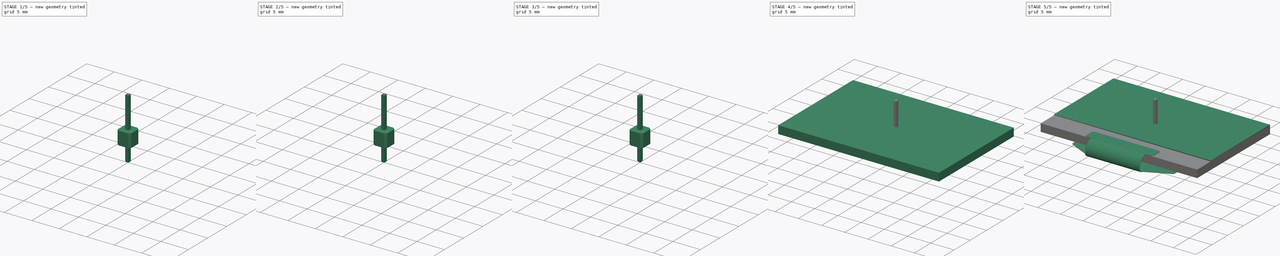
[diagram: build sequence overview — one tinted view per stage of 5, left to right]
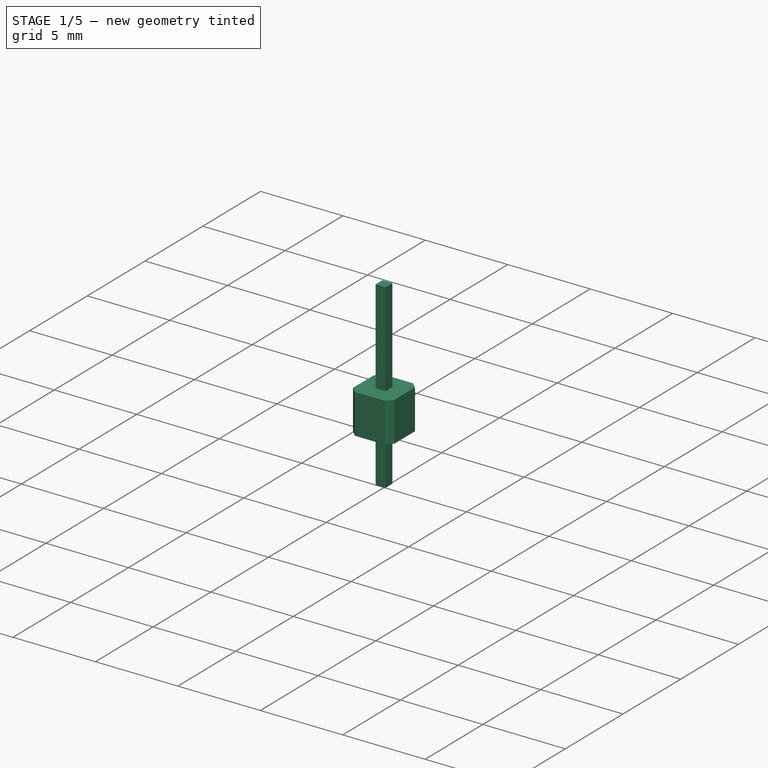
[diagram: stage 1 of 5 — iso view after this stage's code; geometry added in this stage tinted green]
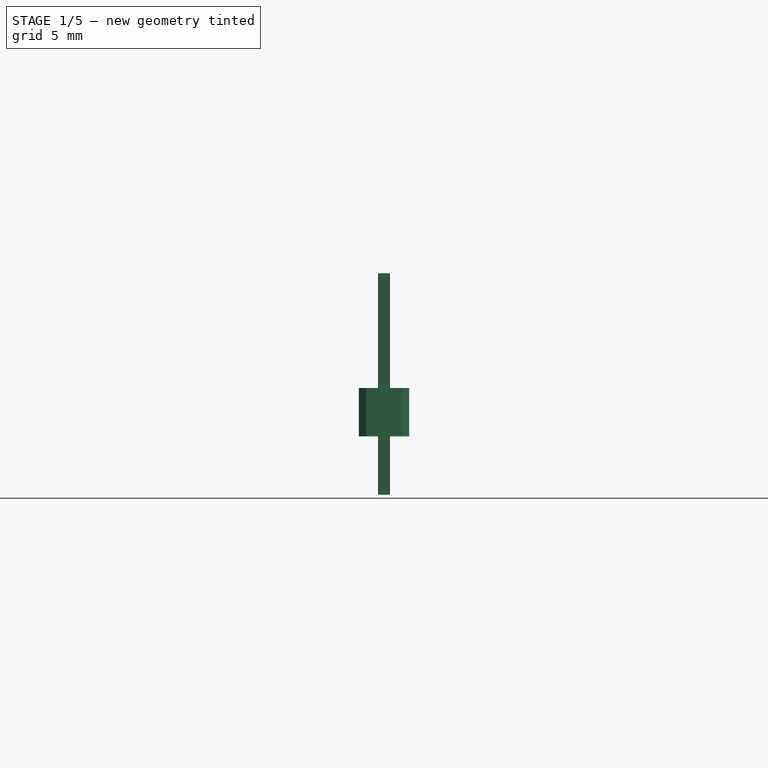
[diagram: stage 1 of 5 — front view after this stage's code; geometry added in this stage tinted green]
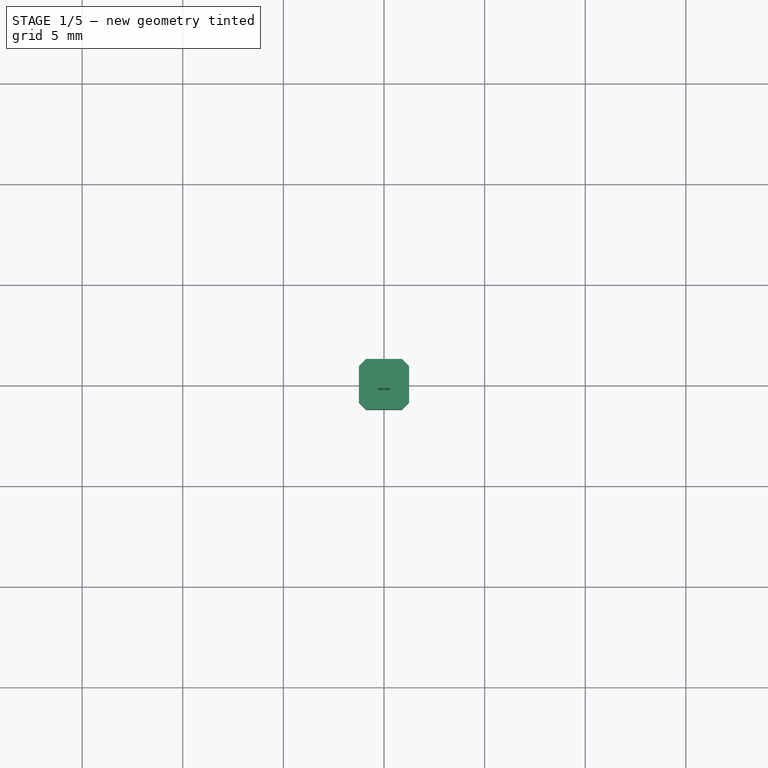
[diagram: stage 1 of 5 — top view after this stage's code; geometry added in this stage tinted green]
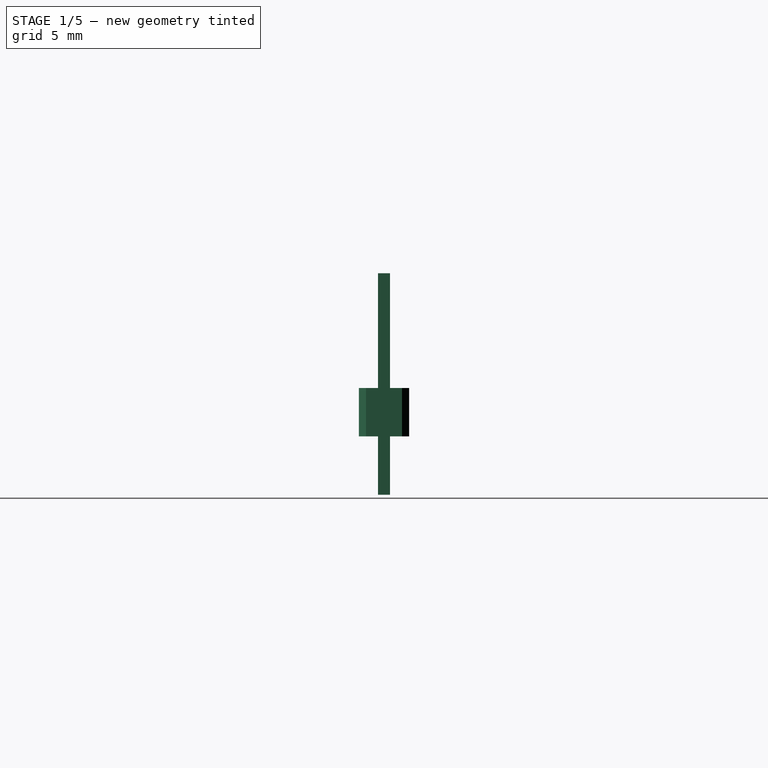
[diagram: stage 1 of 5 — right view after this stage's code; geometry added in this stage tinted green]
FCSTD DOCUMENT  (FreeCAD 0.22R37898 (Git))
Label: display
License: All rights reserved
LicenseURL: http://en.wikipedia.org/wiki/All_rights_reserved
objects: Sketcher::SketchObject×14, PartDesign::Pad×14, PartDesign::Body×11, App::Part×5, PartDesign::Chamfer×4
note: 61 computed .brp shape members not serialized (recipe doc carries the construction recipe); baked Part::Feature solids carry a one-line shape summary decoded from their .brp

FEATURE [PartDesign::Body] Body007  label="Pin base002"
  AllowCompound = false
  Group = -> [Sketch068,Pad010]
  Origin = -> Origin080
  Tip = -> Pad010
FEATURE [Sketcher::SketchObject] Sketch069
  AttachmentSupport = -> [XZ_Plane081]
  FullyConstrained = true
  MapMode = 5
  Placement = pos=(0,0,0) rot=(1,0,0;1.5708rad)
  sketch-geometry (4):
    g0: LineSegment StartX=-0.3 StartY=8.1 StartZ=0 EndX=-0.3 EndY=-2.9 EndZ=0
    g1: LineSegment StartX=-0.3 StartY=-2.9 StartZ=0 EndX=0.3 EndY=-2.9 EndZ=0
    g2: LineSegment StartX=0.3 StartY=-2.9 StartZ=0 EndX=0.3 EndY=8.1 EndZ=0
    g3: LineSegment StartX=0.3 StartY=8.1 StartZ=0 EndX=-0.3 EndY=8.1 EndZ=0
  constraints (11):
    c: Vertical(g0)
    c: Coincident(g0,g1)
    c: Vertical(g2)
    c: Coincident(g3,g0)
    c: Horizontal(g3)
    c: DistanceX(g0,g2) = 0.6  'thickness'
    c: DistanceY(g0,g0) = 11
    c: DistanceY(g-1,g0) = 8.1
    c: Coincident(g1,g2)
    c: Coincident(g2,g3)
    c: Symmetric(g1,g0,g-2)
FEATURE [PartDesign::Pad] Pad031  label="Pad011"
  Direction = (0,-1,2e-16)
  Length = 0.6
  Length2 = 10
  Midplane = true
  Placement = pos=(0,0,0) rot=(1,0,0;1.5708rad)
  Profile = -> Sketch069
  ReferenceAxis = -> Sketch069 [N_Axis]
  Suppressed = false
  Type = 0
  expr: Length = <<Sketch069>>.Constraints.thickness
FEATURE [PartDesign::Body] Body019  label="Pin002"
  AllowCompound = false
  Group = -> [Sketch069,Pad031,Chamfer004]
  Origin = -> Origin081
  Tip = -> Chamfer004
FEATURE [App::Part] Part010  label="Header pin002"
  Group = -> [Body019,Body007]
  Origin = -> Origin082
  Placement = pos=(-1.25,15.5,-2e-16) rot=(0,1,0;3.14159rad)
FEATURE [Sketcher::SketchObject] Sketch070
  AttachmentSupport = -> [XY_Plane083]
  FullyConstrained = true
  MapMode = 5
  sketch-geometry (16):
    g0: LineSegment StartX=-1.25 StartY=0.896447 StartZ=0 EndX=-1.25 EndY=-0.896447 EndZ=0
    g1: LineSegment StartX=-0.896447 StartY=-1.25 StartZ=0 EndX=0.896447 EndY=-1.25 EndZ=0
    g2: LineSegment StartX=1.25 StartY=-0.896447 StartZ=0 EndX=1.25 EndY=0.896447 EndZ=0
    g3: LineSegment StartX=0.896447 StartY=1.25 StartZ=0 EndX=-0.896447 EndY=1.25 EndZ=0
    g4: ArcOfCircle CenterX=0.896447 CenterY=0.896447 CenterZ=0 NormalX=0 NormalY=0 NormalZ=1 AngleXU=0 Radius=0.353553 StartAngle=5.86e-14 EndAngle=1.5708
    g5: GeomPoint X=1.25 Y=1.25 Z=0
    g6: LineSegment StartX=1.25 StartY=0.896447 StartZ=0 EndX=0.896447 EndY=1.25 EndZ=0
    g7: ArcOfCircle CenterX=-0.896447 CenterY=0.896447 CenterZ=0 NormalX=0 NormalY=0 NormalZ=1 AngleXU=0 Radius=0.353553 StartAngle=1.5708 EndAngle=3.14159
    g8: GeomPoint X=-1.25 Y=1.25 Z=0
    g9: LineSegment StartX=-0.896447 StartY=1.25 StartZ=0 EndX=-1.25 EndY=0.896447 EndZ=0
    g10: ArcOfCircle CenterX=-0.896447 CenterY=-0.896447 CenterZ=0 NormalX=0 NormalY=0 NormalZ=1 AngleXU=0 Radius=0.353553 StartAngle=3.14159 EndAngle=4.71239
    g11: GeomPoint X=-1.25 Y=-1.25 Z=0
    g12: LineSegment StartX=-1.25 StartY=-0.896447 StartZ=0 EndX=-0.896447 EndY=-1.25 EndZ=0
    g13: ArcOfCircle CenterX=0.896447 CenterY=-0.896447 CenterZ=0 NormalX=0 NormalY=0 NormalZ=1 AngleXU=0 Radius=0.353553 StartAngle=4.71239 EndAngle=6.28319
    g14: GeomPoint X=1.25 Y=-1.25 Z=0
    g15: LineSegment StartX=0.896447 StartY=-1.25 StartZ=0 EndX=1.25 EndY=-0.896447 EndZ=0
  constraints (35):
    c: Vertical(g0)
    c: Vertical(g2)
    c: Horizontal(g1)
    c: Horizontal(g3)
    c: Symmetric(g14,g8,g-1)
    c: PointOnObject(g5,g2)
    c: PointOnObject(g5,g3)
    c: Tangent(g2,g4) = -1.5708
    c: Tangent(g3,g4) = -1.5708
    c: Coincident(g6,g2)
    c: Coincident(g6,g3)
    c: PointOnObject(g8,g0)
    c: PointOnObject(g8,g3)
    c: Tangent(g0,g7) = -1.5708
    c: Tangent(g3,g7) = -1.5708
    c: Coincident(g9,g0)
    c: Coincident(g9,g3)
    c: PointOnObject(g11,g0)
    c: PointOnObject(g11,g1)
    c: Tangent(g0,g10) = -1.5708
    c: Tangent(g1,g10) = -1.5708
    c: Coincident(g12,g0)
    c: Coincident(g12,g1)
    c: PointOnObject(g14,g1)
    c: PointOnObject(g14,g2)
    c: Tangent(g1,g13) = -1.5708
    c: Tangent(g2,g13) = -1.5708
    c: Coincident(g15,g1)
    c: Coincident(g15,g2)
    c: Equal(g13,g4)
    c: Equal(g4,g7)
    c: Equal(g7,g10)
    c: DistanceY(g1,g3) = 2.5
    c: Equal(g2,g3)
    c: Distance(g6) = 0.5
FEATURE [PartDesign::Pad] Pad032  label="Pad012"
  Direction = (0,0,1)
  Length = 2.4
  Length2 = 10
  Profile = -> Sketch070
  ReferenceAxis = -> Sketch070 [N_Axis]
  Suppressed = false
  Type = 0
FEATURE [PartDesign::Body] Body020  label="Pin base003"
  AllowCompound = false
  Group = -> [Sketch070,Pad032]
  Origin = -> Origin083
  Tip = -> Pad032
FEATURE [Sketcher::SketchObject] Sketch071
  AttachmentSupport = -> [XZ_Plane084]
  FullyConstrained = true
  MapMode = 5
  Placement = pos=(0,0,0) rot=(1,0,0;1.5708rad)
  sketch-geometry (4):
    g0: LineSegment StartX=-0.3 StartY=8.1 StartZ=0 EndX=-0.3 EndY=-2.9 EndZ=0
    g1: LineSegment StartX=-0.3 StartY=-2.9 StartZ=0 EndX=0.3 EndY=-2.9 EndZ=0
    g2: LineSegment StartX=0.3 StartY=-2.9 StartZ=0 EndX=0.3 EndY=8.1 EndZ=0
    g3: LineSegment StartX=0.3 StartY=8.1 StartZ=0 EndX=-0.3 EndY=8.1 EndZ=0
  constraints (11):
    c: Vertical(g0)
    c: Coincident(g0,g1)
    c: Vertical(g2)
    c: Coincident(g3,g0)
    c: Horizontal(g3)
    c: DistanceX(g0,g2) = 0.6  'thickness'
    c: DistanceY(g0,g0) = 11
    c: DistanceY(g-1,g0) = 8.1
    c: Coincident(g1,g2)
    c: Coincident(g2,g3)
    c: Symmetric(g1,g0,g-2)
FEATURE [PartDesign::Pad] Pad013
  Direction = (0,-1,2e-16)
  Length = 0.6
  Length2 = 10
  Midplane = true
  Placement = pos=(0,0,0) rot=(1,0,0;1.5708rad)
  Profile = -> Sketch071
  ReferenceAxis = -> Sketch071 [N_Axis]
  Suppressed = false
  Type = 0
  expr: Length = <<Sketch071>>.Constraints.thickness
FEATURE [PartDesign::Chamfer] Chamfer005
  Angle = 45
  Base = -> Pad013 [Face4,Face2]
  BaseFeature = -> Pad013
  ChamferType = 1
  FlipDirection = false
  Placement = pos=(0,0,0) rot=(1,0,0;1.5708rad)
  Size = 0.1
  Size2 = 0.2
  SupportTransform = false
  Suppressed = false
  UseAllEdges = false
FEATURE [PartDesign::Body] Body021  label="Pin003"
  AllowCompound = false
  Group = -> [Sketch071,Pad013,Chamfer005]
  Origin = -> Origin084
  Tip = -> Chamfer005
FEATURE [App::Part] Part011  label="Header pin003"
  Group = -> [Body021,Body020]
  Origin = -> Origin085
  Placement = pos=(-3.75,15.5,-4e-16) rot=(0,1,0;3.14159rad)
FEATURE [App::Part] Part008  label="Display"
  Group = -> [Body,Body013,Body014,Part,Part009,Part010,Part011]
  Origin = -> Origin076
  Placement = pos=(-23.5,-2.125,-3.5) rot=(0,0,1;0rad)
  expr: .Placement.Base.y = -(<<OLED sketch>>.Constraints.height - <<Display area sketch>>.Constraints.height) / 2
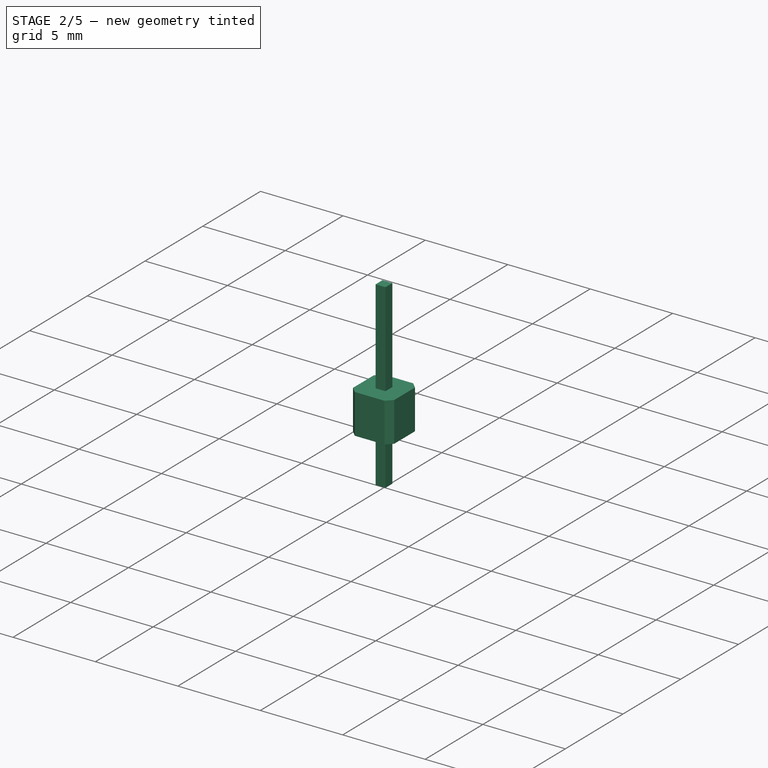
[diagram: stage 2 of 5 — iso view after this stage's code; geometry added in this stage tinted green]
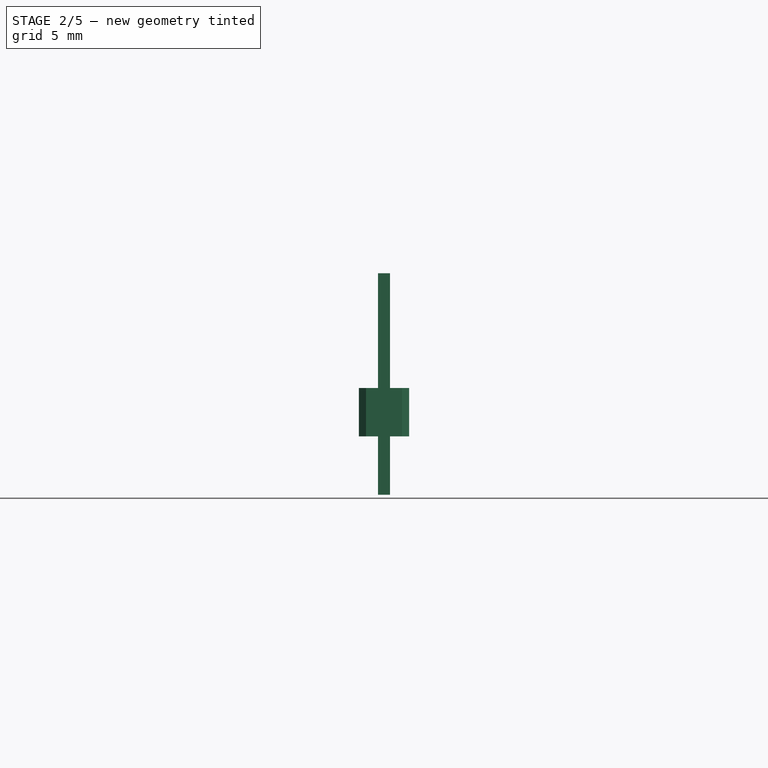
[diagram: stage 2 of 5 — front view after this stage's code; geometry added in this stage tinted green]
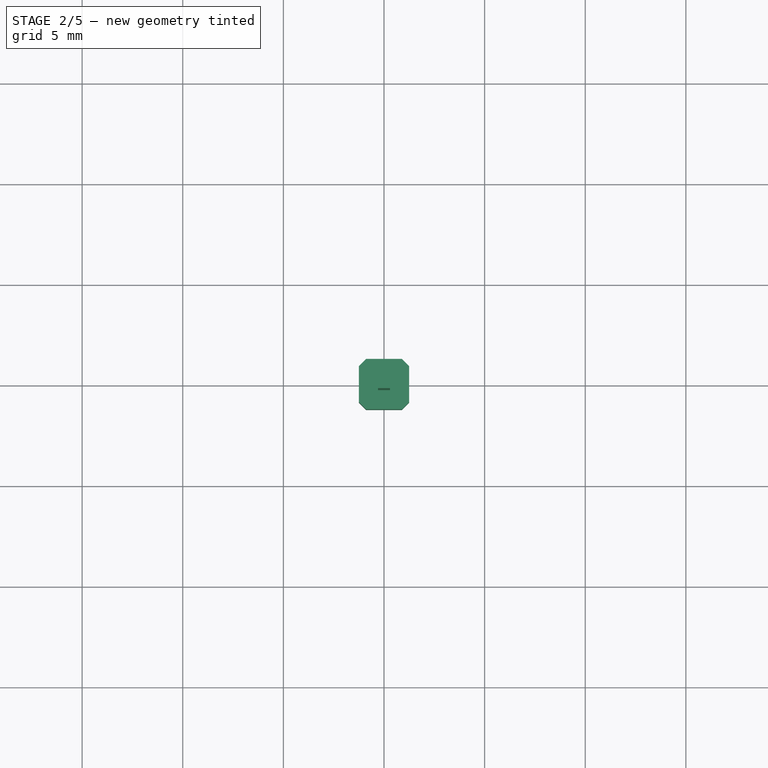
[diagram: stage 2 of 5 — top view after this stage's code; geometry added in this stage tinted green]
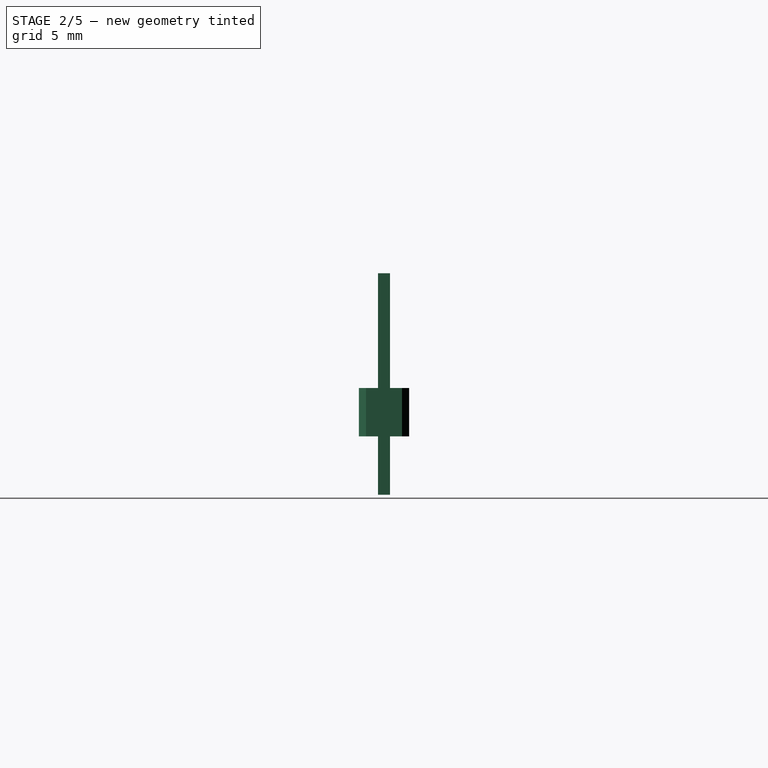
[diagram: stage 2 of 5 — right view after this stage's code; geometry added in this stage tinted green]
FEATURE [PartDesign::Body] Body017  label="Pin base001"
  AllowCompound = false
  Group = -> [Sketch066,Pad030]
  Origin = -> Origin077
  Tip = -> Pad030
FEATURE [Sketcher::SketchObject] Sketch067
  AttachmentSupport = -> [XZ_Plane078]
  FullyConstrained = true
  MapMode = 5
  Placement = pos=(0,0,0) rot=(1,0,0;1.5708rad)
  sketch-geometry (4):
    g0: LineSegment StartX=-0.3 StartY=8.1 StartZ=0 EndX=-0.3 EndY=-2.9 EndZ=0
    g1: LineSegment StartX=-0.3 StartY=-2.9 StartZ=0 EndX=0.3 EndY=-2.9 EndZ=0
    g2: LineSegment StartX=0.3 StartY=-2.9 StartZ=0 EndX=0.3 EndY=8.1 EndZ=0
    g3: LineSegment StartX=0.3 StartY=8.1 StartZ=0 EndX=-0.3 EndY=8.1 EndZ=0
  constraints (11):
    c: Vertical(g0)
    c: Coincident(g0,g1)
    c: Vertical(g2)
    c: Coincident(g3,g0)
    c: Horizontal(g3)
    c: DistanceX(g0,g2) = 0.6  'thickness'
    c: DistanceY(g0,g0) = 11
    c: DistanceY(g-1,g0) = 8.1
    c: Coincident(g1,g2)
    c: Coincident(g2,g3)
    c: Symmetric(g1,g0,g-2)
FEATURE [PartDesign::Pad] Pad009
  Direction = (0,-1,2e-16)
  Length = 0.6
  Length2 = 10
  Midplane = true
  Placement = pos=(0,0,0) rot=(1,0,0;1.5708rad)
  Profile = -> Sketch067
  ReferenceAxis = -> Sketch067 [N_Axis]
  Suppressed = false
  Type = 0
  expr: Length = <<Sketch067>>.Constraints.thickness
FEATURE [PartDesign::Body] Body018  label="Pin001"
  AllowCompound = false
  Group = -> [Sketch067,Pad009,Chamfer003]
  Origin = -> Origin078
  Tip = -> Chamfer003
FEATURE [App::Part] Part009  label="Header pin001"
  Group = -> [Body018,Body017]
  Origin = -> Origin079
  Placement = pos=(1.25,15.5,2e-16) rot=(0,1,0;3.14159rad)
FEATURE [Sketcher::SketchObject] Sketch068
  AttachmentSupport = -> [XY_Plane080]
  FullyConstrained = true
  MapMode = 5
  sketch-geometry (16):
    g0: LineSegment StartX=-1.25 StartY=0.896447 StartZ=0 EndX=-1.25 EndY=-0.896447 EndZ=0
    g1: LineSegment StartX=-0.896447 StartY=-1.25 StartZ=0 EndX=0.896447 EndY=-1.25 EndZ=0
    g2: LineSegment StartX=1.25 StartY=-0.896447 StartZ=0 EndX=1.25 EndY=0.896447 EndZ=0
    g3: LineSegment StartX=0.896447 StartY=1.25 StartZ=0 EndX=-0.896447 EndY=1.25 EndZ=0
    g4: ArcOfCircle CenterX=0.896447 CenterY=0.896447 CenterZ=0 NormalX=0 NormalY=0 NormalZ=1 AngleXU=0 Radius=0.353553 StartAngle=5.86e-14 EndAngle=1.5708
    g5: GeomPoint X=1.25 Y=1.25 Z=0
    g6: LineSegment StartX=1.25 StartY=0.896447 StartZ=0 EndX=0.896447 EndY=1.25 EndZ=0
    g7: ArcOfCircle CenterX=-0.896447 CenterY=0.896447 CenterZ=0 NormalX=0 NormalY=0 NormalZ=1 AngleXU=0 Radius=0.353553 StartAngle=1.5708 EndAngle=3.14159
    g8: GeomPoint X=-1.25 Y=1.25 Z=0
    g9: LineSegment StartX=-0.896447 StartY=1.25 StartZ=0 EndX=-1.25 EndY=0.896447 EndZ=0
    g10: ArcOfCircle CenterX=-0.896447 CenterY=-0.896447 CenterZ=0 NormalX=0 NormalY=0 NormalZ=1 AngleXU=0 Radius=0.353553 StartAngle=3.14159 EndAngle=4.71239
    g11: GeomPoint X=-1.25 Y=-1.25 Z=0
    g12: LineSegment StartX=-1.25 StartY=-0.896447 StartZ=0 EndX=-0.896447 EndY=-1.25 EndZ=0
    g13: ArcOfCircle CenterX=0.896447 CenterY=-0.896447 CenterZ=0 NormalX=0 NormalY=0 NormalZ=1 AngleXU=0 Radius=0.353553 StartAngle=4.71239 EndAngle=6.28319
    g14: GeomPoint X=1.25 Y=-1.25 Z=0
    g15: LineSegment StartX=0.896447 StartY=-1.25 StartZ=0 EndX=1.25 EndY=-0.896447 EndZ=0
  constraints (35):
    c: Vertical(g0)
    c: Vertical(g2)
    c: Horizontal(g1)
    c: Horizontal(g3)
    c: Symmetric(g14,g8,g-1)
    c: PointOnObject(g5,g2)
    c: PointOnObject(g5,g3)
    c: Tangent(g2,g4) = -1.5708
    c: Tangent(g3,g4) = -1.5708
    c: Coincident(g6,g2)
    c: Coincident(g6,g3)
    c: PointOnObject(g8,g0)
    c: PointOnObject(g8,g3)
    c: Tangent(g0,g7) = -1.5708
    c: Tangent(g3,g7) = -1.5708
    c: Coincident(g9,g0)
    c: Coincident(g9,g3)
    c: PointOnObject(g11,g0)
    c: PointOnObject(g11,g1)
    c: Tangent(g0,g10) = -1.5708
    c: Tangent(g1,g10) = -1.5708
    c: Coincident(g12,g0)
    c: Coincident(g12,g1)
    c: PointOnObject(g14,g1)
    c: PointOnObject(g14,g2)
    c: Tangent(g1,g13) = -1.5708
    c: Tangent(g2,g13) = -1.5708
    c: Coincident(g15,g1)
    c: Coincident(g15,g2)
    c: Equal(g13,g4)
    c: Equal(g4,g7)
    c: Equal(g7,g10)
    c: DistanceY(g1,g3) = 2.5
    c: Equal(g2,g3)
    c: Distance(g6) = 0.5
FEATURE [PartDesign::Pad] Pad010
  Direction = (0,0,1)
  Length = 2.4
  Length2 = 10
  Profile = -> Sketch068
  ReferenceAxis = -> Sketch068 [N_Axis]
  Suppressed = false
  Type = 0
FEATURE [PartDesign::Chamfer] Chamfer004
  Angle = 45
  Base = -> Pad031 [Face4,Face2]
  BaseFeature = -> Pad031
  ChamferType = 1
  FlipDirection = false
  Placement = pos=(0,0,0) rot=(1,0,0;1.5708rad)
  Size = 0.1
  Size2 = 0.2
  SupportTransform = false
  Suppressed = false
  UseAllEdges = false
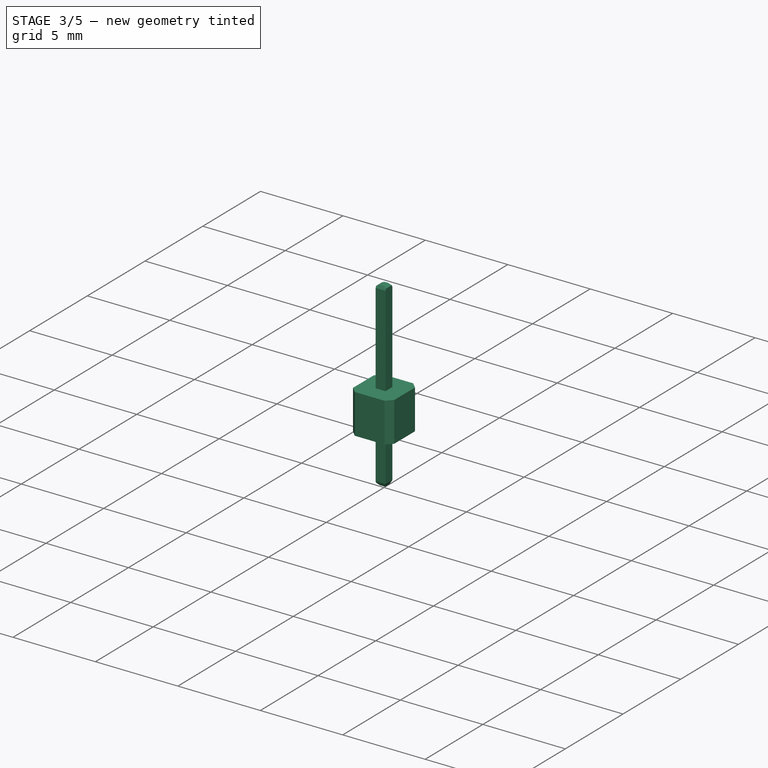
[diagram: stage 3 of 5 — iso view after this stage's code; geometry added in this stage tinted green]
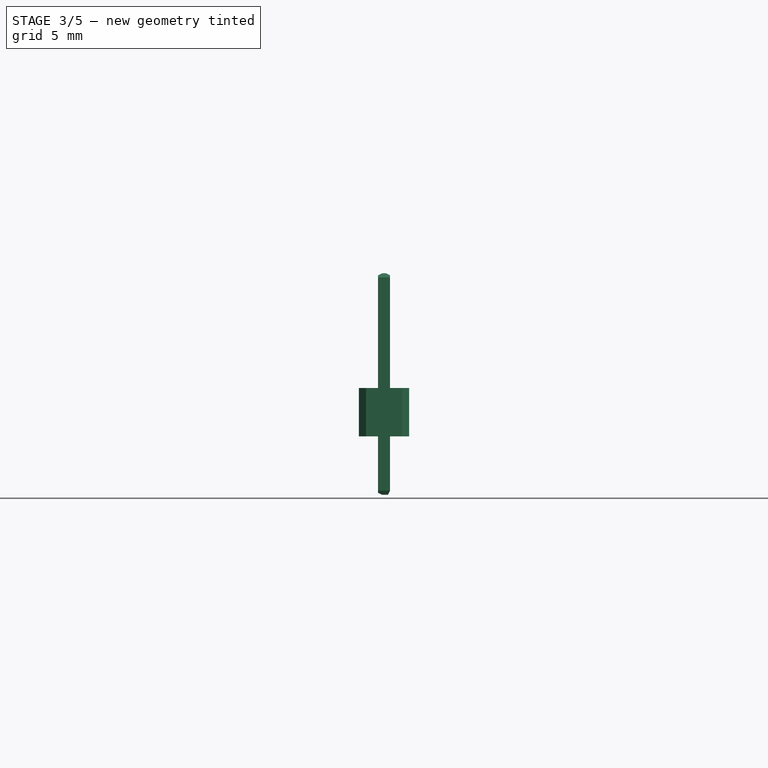
[diagram: stage 3 of 5 — front view after this stage's code; geometry added in this stage tinted green]
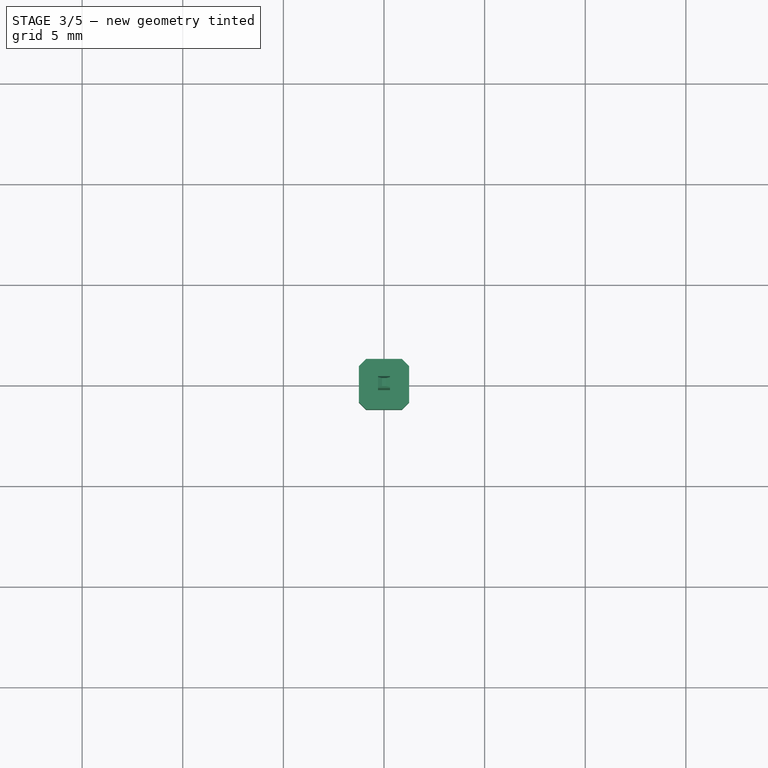
[diagram: stage 3 of 5 — top view after this stage's code; geometry added in this stage tinted green]
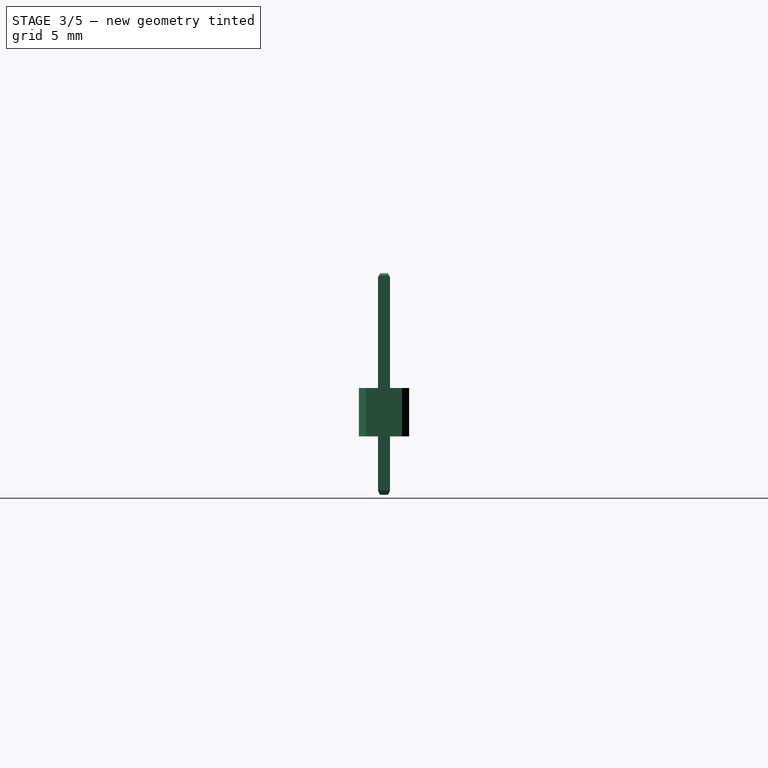
[diagram: stage 3 of 5 — right view after this stage's code; geometry added in this stage tinted green]
FEATURE [PartDesign::Body] Body015  label="Pin base"
  AllowCompound = false
  Group = -> [Sketch064,Pad028]
  Origin = -> Origin073
  Tip = -> Pad028
FEATURE [Sketcher::SketchObject] Sketch065
  AttachmentSupport = -> [XZ_Plane074]
  FullyConstrained = true
  MapMode = 5
  Placement = pos=(0,0,0) rot=(1,0,0;1.5708rad)
  sketch-geometry (4):
    g0: LineSegment StartX=-0.3 StartY=8.1 StartZ=0 EndX=-0.3 EndY=-2.9 EndZ=0
    g1: LineSegment StartX=-0.3 StartY=-2.9 StartZ=0 EndX=0.3 EndY=-2.9 EndZ=0
    g2: LineSegment StartX=0.3 StartY=-2.9 StartZ=0 EndX=0.3 EndY=8.1 EndZ=0
    g3: LineSegment StartX=0.3 StartY=8.1 StartZ=0 EndX=-0.3 EndY=8.1 EndZ=0
  constraints (11):
    c: Vertical(g0)
    c: Coincident(g0,g1)
    c: Vertical(g2)
    c: Coincident(g3,g0)
    c: Horizontal(g3)
    c: DistanceX(g0,g2) = 0.6  'thickness'
    c: DistanceY(g0,g0) = 11
    c: DistanceY(g-1,g0) = 8.1
    c: Coincident(g1,g2)
    c: Coincident(g2,g3)
    c: Symmetric(g1,g0,g-2)
FEATURE [PartDesign::Pad] Pad029
  Direction = (0,-1,2e-16)
  Length = 0.6
  Length2 = 10
  Midplane = true
  Placement = pos=(0,0,0) rot=(1,0,0;1.5708rad)
  Profile = -> Sketch065
  ReferenceAxis = -> Sketch065 [N_Axis]
  Suppressed = false
  Type = 0
  expr: Length = <<Sketch065>>.Constraints.thickness
FEATURE [PartDesign::Chamfer] Chamfer002
  Angle = 45
  Base = -> Pad029 [Face4,Face2]
  BaseFeature = -> Pad029
  ChamferType = 1
  FlipDirection = false
  Placement = pos=(0,0,0) rot=(1,0,0;1.5708rad)
  Size = 0.1
  Size2 = 0.2
  SupportTransform = false
  Suppressed = false
  UseAllEdges = false
FEATURE [PartDesign::Body] Body016  label="Pin"
  AllowCompound = false
  Group = -> [Sketch065,Pad029,Chamfer002]
  Origin = -> Origin074
  Tip = -> Chamfer002
FEATURE [App::Part] Part  label="Header pin"
  Group = -> [Body016,Body015]
  Origin = -> Origin075
  Placement = pos=(3.75,15.5,4e-16) rot=(0,1,0;3.14159rad)
FEATURE [Sketcher::SketchObject] Sketch066
  AttachmentSupport = -> [XY_Plane077]
  FullyConstrained = true
  MapMode = 5
  sketch-geometry (16):
    g0: LineSegment StartX=-1.25 StartY=0.896447 StartZ=0 EndX=-1.25 EndY=-0.896447 EndZ=0
    g1: LineSegment StartX=-0.896447 StartY=-1.25 StartZ=0 EndX=0.896447 EndY=-1.25 EndZ=0
    g2: LineSegment StartX=1.25 StartY=-0.896447 StartZ=0 EndX=1.25 EndY=0.896447 EndZ=0
    g3: LineSegment StartX=0.896447 StartY=1.25 StartZ=0 EndX=-0.896447 EndY=1.25 EndZ=0
    g4: ArcOfCircle CenterX=0.896447 CenterY=0.896447 CenterZ=0 NormalX=0 NormalY=0 NormalZ=1 AngleXU=0 Radius=0.353553 StartAngle=5.86e-14 EndAngle=1.5708
    g5: GeomPoint X=1.25 Y=1.25 Z=0
    g6: LineSegment StartX=1.25 StartY=0.896447 StartZ=0 EndX=0.896447 EndY=1.25 EndZ=0
    g7: ArcOfCircle CenterX=-0.896447 CenterY=0.896447 CenterZ=0 NormalX=0 NormalY=0 NormalZ=1 AngleXU=0 Radius=0.353553 StartAngle=1.5708 EndAngle=3.14159
    g8: GeomPoint X=-1.25 Y=1.25 Z=0
    g9: LineSegment StartX=-0.896447 StartY=1.25 StartZ=0 EndX=-1.25 EndY=0.896447 EndZ=0
    g10: ArcOfCircle CenterX=-0.896447 CenterY=-0.896447 CenterZ=0 NormalX=0 NormalY=0 NormalZ=1 AngleXU=0 Radius=0.353553 StartAngle=3.14159 EndAngle=4.71239
    g11: GeomPoint X=-1.25 Y=-1.25 Z=0
    g12: LineSegment StartX=-1.25 StartY=-0.896447 StartZ=0 EndX=-0.896447 EndY=-1.25 EndZ=0
    g13: ArcOfCircle CenterX=0.896447 CenterY=-0.896447 CenterZ=0 NormalX=0 NormalY=0 NormalZ=1 AngleXU=0 Radius=0.353553 StartAngle=4.71239 EndAngle=6.28319
    g14: GeomPoint X=1.25 Y=-1.25 Z=0
    g15: LineSegment StartX=0.896447 StartY=-1.25 StartZ=0 EndX=1.25 EndY=-0.896447 EndZ=0
  constraints (35):
    c: Vertical(g0)
    c: Vertical(g2)
    c: Horizontal(g1)
    c: Horizontal(g3)
    c: Symmetric(g14,g8,g-1)
    c: PointOnObject(g5,g2)
    c: PointOnObject(g5,g3)
    c: Tangent(g2,g4) = -1.5708
    c: Tangent(g3,g4) = -1.5708
    c: Coincident(g6,g2)
    c: Coincident(g6,g3)
    c: PointOnObject(g8,g0)
    c: PointOnObject(g8,g3)
    c: Tangent(g0,g7) = -1.5708
    c: Tangent(g3,g7) = -1.5708
    c: Coincident(g9,g0)
    c: Coincident(g9,g3)
    c: PointOnObject(g11,g0)
    c: PointOnObject(g11,g1)
    c: Tangent(g0,g10) = -1.5708
    c: Tangent(g1,g10) = -1.5708
    c: Coincident(g12,g0)
    c: Coincident(g12,g1)
    c: PointOnObject(g14,g1)
    c: PointOnObject(g14,g2)
    c: Tangent(g1,g13) = -1.5708
    c: Tangent(g2,g13) = -1.5708
    c: Coincident(g15,g1)
    c: Coincident(g15,g2)
    c: Equal(g13,g4)
    c: Equal(g4,g7)
    c: Equal(g7,g10)
    c: DistanceY(g1,g3) = 2.5
    c: Equal(g2,g3)
    c: Distance(g6) = 0.5
FEATURE [PartDesign::Pad] Pad030
  Direction = (0,0,1)
  Length = 2.4
  Length2 = 10
  Profile = -> Sketch066
  ReferenceAxis = -> Sketch066 [N_Axis]
  Suppressed = false
  Type = 0
FEATURE [PartDesign::Chamfer] Chamfer003
  Angle = 45
  Base = -> Pad009 [Face4,Face2]
  BaseFeature = -> Pad009
  ChamferType = 1
  FlipDirection = false
  Placement = pos=(0,0,0) rot=(1,0,0;1.5708rad)
  Size = 0.1
  Size2 = 0.2
  SupportTransform = false
  Suppressed = false
  UseAllEdges = false
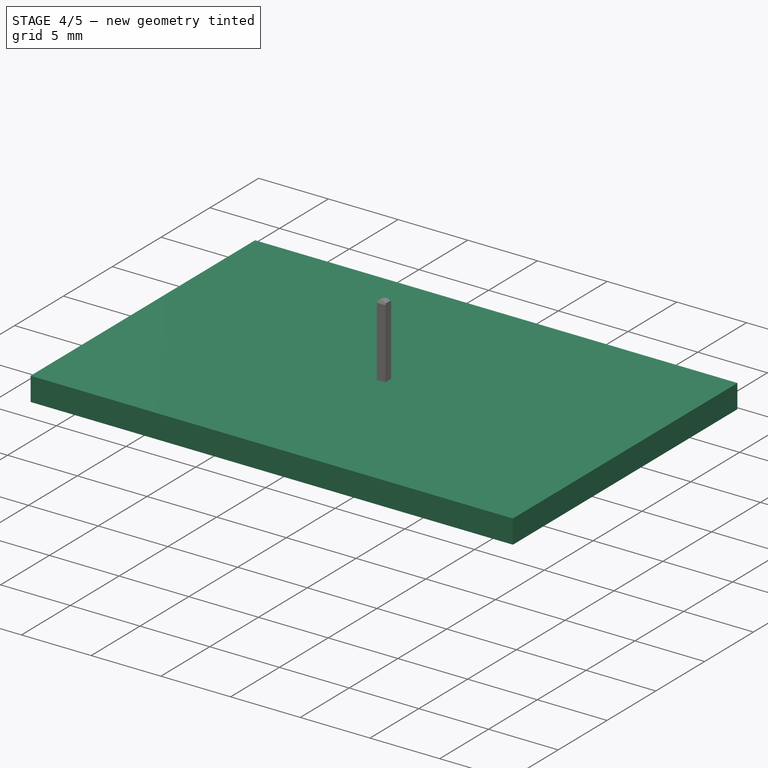
[diagram: stage 4 of 5 — iso view after this stage's code; geometry added in this stage tinted green]
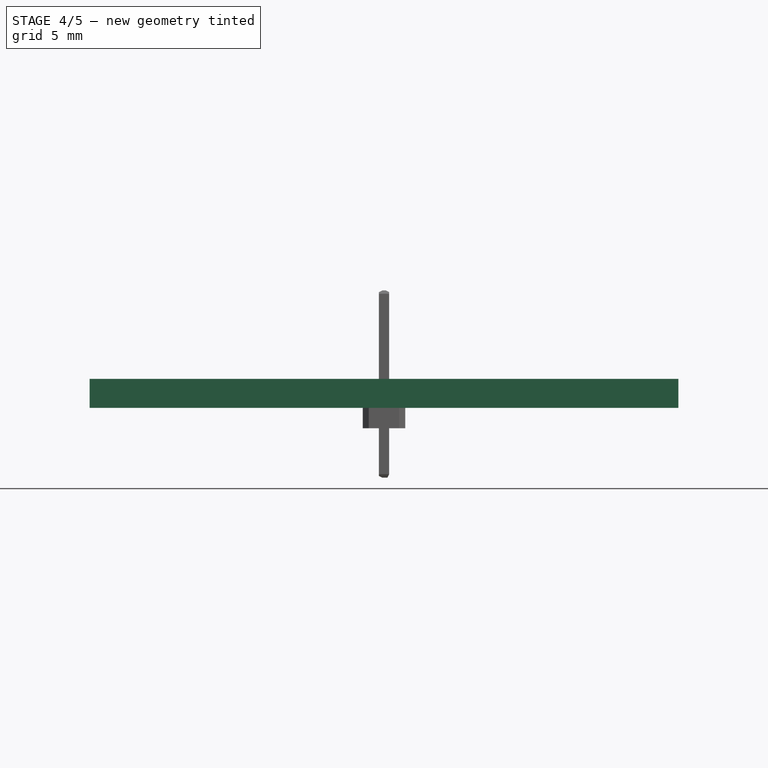
[diagram: stage 4 of 5 — front view after this stage's code; geometry added in this stage tinted green]
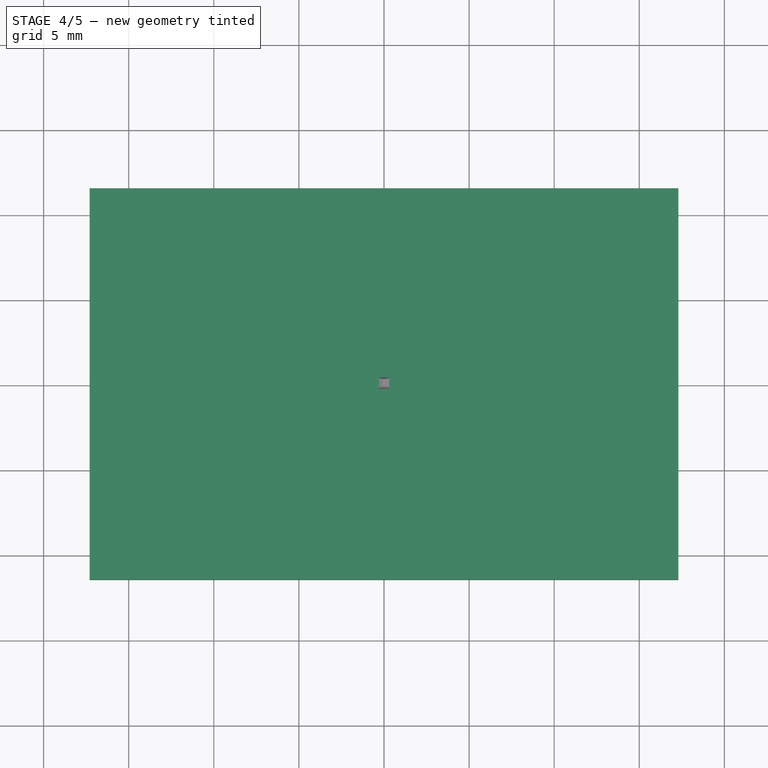
[diagram: stage 4 of 5 — top view after this stage's code; geometry added in this stage tinted green]
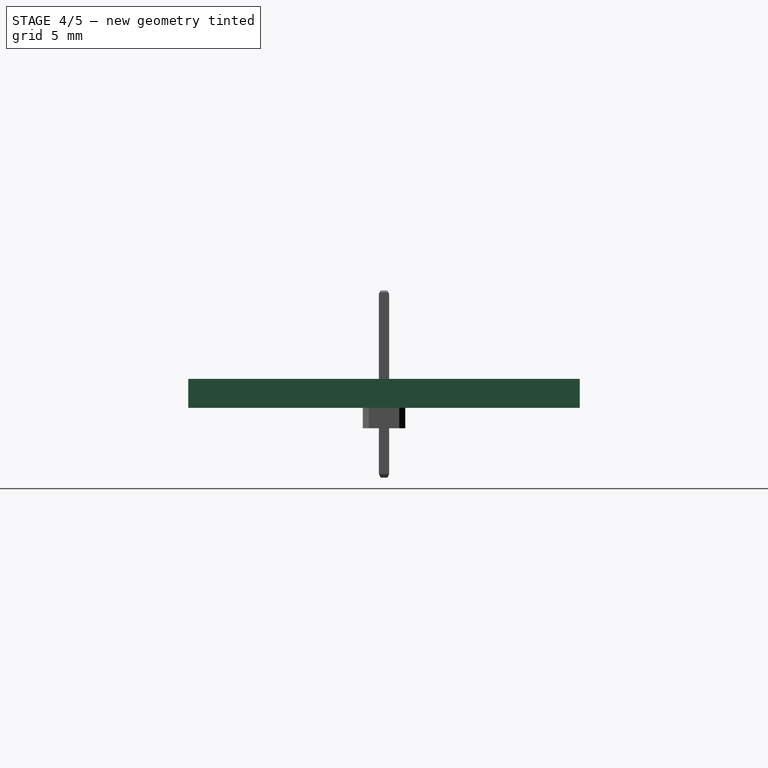
[diagram: stage 4 of 5 — right view after this stage's code; geometry added in this stage tinted green]
FEATURE [Sketcher::SketchObject] Sketch061  label="PCB sketch001"
  AttachmentSupport = -> [XY_Plane071]
  FullyConstrained = true
  MapMode = 5
  expr: Constraints[29] = 0.9 mm + 3.2 mm / 2
  sketch-geometry (14):
    g0: LineSegment StartX=-17.8 StartY=16.8 StartZ=0 EndX=17.8 EndY=16.8 EndZ=0
    g1: LineSegment StartX=17.8 StartY=16.8 StartZ=0 EndX=17.8 EndY=-16.8 EndZ=0
    g2: LineSegment StartX=17.8 StartY=-16.8 StartZ=0 EndX=7 EndY=-16.8 EndZ=0
    g3: LineSegment StartX=7 StartY=-16.8 StartZ=0 EndX=7 EndY=-12.5 EndZ=0
    g4: LineSegment StartX=7 StartY=-12.5 StartZ=0 EndX=-7 EndY=-12.5 EndZ=0
    g5: LineSegment StartX=-7 StartY=-12.5 StartZ=0 EndX=-7 EndY=-16.8 EndZ=0
    g6: LineSegment StartX=-7 StartY=-16.8 StartZ=0 EndX=-17.8 EndY=-16.8 EndZ=0
    g7: LineSegment StartX=-17.8 StartY=-16.8 StartZ=0 EndX=-17.8 EndY=16.8 EndZ=0
    g8: Circle CenterX=15.3 CenterY=14.3 CenterZ=0 NormalX=0 NormalY=0 NormalZ=1 AngleXU=0 Radius=1.6
    g9: Circle CenterX=-15.3 CenterY=14.3 CenterZ=0 NormalX=0 NormalY=0 NormalZ=1 AngleXU=0 Radius=1.6
    g10: Circle CenterX=-15.3 CenterY=-14.3 CenterZ=0 NormalX=0 NormalY=0 NormalZ=1 AngleXU=0 Radius=1.6
    g11: Circle CenterX=15.3 CenterY=-14.3 CenterZ=0 NormalX=0 NormalY=0 NormalZ=1 AngleXU=0 Radius=1.6
    g12: LineSegment StartX=15.3 StartY=14.3 StartZ=0 EndX=17.8 EndY=14.3 EndZ=0
    g13: LineSegment StartX=15.3 StartY=14.3 StartZ=0 EndX=15.3 EndY=16.8 EndZ=0
  constraints (38):
    c: Horizontal(g0)
    c: Coincident(g0,g1)
    c: Coincident(g1,g2)
    c: Coincident(g2,g3)
    c: Coincident(g3,g4)
    c: Coincident(g4,g5)
    c: Coincident(g5,g6)
    c: Coincident(g6,g7)
    c: Coincident(g7,g0)
    c: Horizontal(g4)
    c: Vertical(g5)
    c: Vertical(g7)
    c: Vertical(g3)
    c: Horizontal(g2)
    c: Horizontal(g6)
    c: Symmetric(g1,g6,g-2)
    c: Symmetric(g6,g0,g-1)
    c: Equal(g2,g6)
    c: DistanceX(g4,g4) = 14
    c: DistanceX(g0,g0) = 35.6
    c: DistanceY(g1,g1) = 33.6
    c: DistanceY(g3,g3) = 4.3
    c: Equal(g11,g8)
    c: Equal(g8,g9)
    c: Equal(g9,g10)
    c: Diameter(g8) = 3.2
    c: Vertical(g10,g9)
    c: Symmetric(g11,g10,g-2)
    c: Horizontal(g9,g8)
    c: DistanceX(g8,g0) = 2.5
    c: Coincident(g12,g8)
    c: PointOnObject(g12,g1)
    c: Horizontal(g12)
    c: Coincident(g13,g8)
    c: PointOnObject(g13,g0)
    c: Vertical(g13)
    c: Equal(g12,g13)
    c: Symmetric(g8,g11,g-1)
FEATURE [PartDesign::Pad] Pad022  label="Pad"
  Direction = (0,0,1)
  Length = 1.2
  Length2 = 10
  Profile = -> Sketch061
  ReferenceAxis = -> Sketch061 [N_Axis]
  Suppressed = false
  Type = 0
FEATURE [PartDesign::Body] Body  label="PCB"
  AllowCompound = false
  Group = -> [Sketch061,Pad022]
  Origin = -> Origin071
  Tip = -> Pad022
FEATURE [Sketcher::SketchObject] Sketch062  label="OLED sketch"
  AttachmentOffset = pos=(0,0,1.2) rot=(0,0,1;0rad)
  AttachmentSupport = -> [XY_Plane072]
  FullyConstrained = true
  MapMode = 5
  Placement = pos=(0,0,1.2) rot=(0,0,1;0rad)
  expr: .AttachmentOffset.Base.z = <<Pad>>.Length
  sketch-geometry (4):
    g0: LineSegment StartX=-17.3 StartY=11.5 StartZ=0 EndX=-17.3 EndY=-11.5 EndZ=0
    g1: LineSegment StartX=-17.3 StartY=-11.5 StartZ=0 EndX=17.3 EndY=-11.5 EndZ=0
    g2: LineSegment StartX=17.3 StartY=-11.5 StartZ=0 EndX=17.3 EndY=11.5 EndZ=0
    g3: LineSegment StartX=17.3 StartY=11.5 StartZ=0 EndX=-17.3 EndY=11.5 EndZ=0
  constraints (11):
    c: Coincident(g0,g1)
    c: Coincident(g1,g2)
    c: Coincident(g2,g3)
    c: Coincident(g3,g0)
    c: Vertical(g0)
    c: Vertical(g2)
    c: Horizontal(g1)
    c: Horizontal(g3)
    c: Symmetric(g1,g0,g-1)
    c: DistanceY(g2,g2) = 23  'height'
    c: DistanceX(g3,g3) = 34.6
FEATURE [Sketcher::SketchObject] Sketch002  label="Display area sketch"
  AttachmentOffset = pos=(0,0,2.9) rot=(0,0,1;0rad)
  AttachmentSupport = -> [XY_Plane072]
  ExternalGeometry = -> [Sketch062]
  FullyConstrained = false
  MapMode = 5
  Placement = pos=(0,0,2.9) rot=(0,0,1;0rad)
  expr: .AttachmentOffset.Base.z = <<OLED sketch>>.Placement.Base.z + <<Main OLED pad>>.Length
  sketch-geometry (4):
    g0: LineSegment StartX=-17.3 StartY=11.5 StartZ=0 EndX=-17.3 EndY=-7.25 EndZ=0
    g1: LineSegment StartX=-17.3 StartY=-7.25 StartZ=0 EndX=17.3 EndY=-7.25 EndZ=0
    g2: LineSegment StartX=17.3 StartY=-7.25 StartZ=0 EndX=17.3 EndY=11.5 EndZ=0
    g3: LineSegment StartX=17.3 StartY=11.5 StartZ=0 EndX=-17.3 EndY=11.5 EndZ=0
  constraints (9):
    c: Coincident(g0,g1)
    c: Coincident(g1,g2)
    c: Coincident(g2,g3)
    c: Coincident(g3,g0)
    c: Vertical(g0)
    c: Vertical(g2)
    c: Horizontal(g1)
    c: Symmetric(g0,g2,g-2)
    c: DistanceY(g2,g2) = 18.75  'height'
FEATURE [PartDesign::Pad] Pad023  label="Main OLED pad"
  Direction = (0,0,1)
  Length = 1.7
  Length2 = 10
  Profile = -> Sketch062
  ReferenceAxis = -> Sketch062 [N_Axis]
  Suppressed = false
  Type = 0
FEATURE [PartDesign::Body] Body014  label="OLED cable"
  AllowCompound = false
  Group = -> [Sketch003,Pad025,Sketch004,Pad026,Sketch063,Pad027]
  Origin = -> Origin002
  Tip = -> Pad027
FEATURE [Sketcher::SketchObject] Sketch064
  AttachmentSupport = -> [XY_Plane073]
  FullyConstrained = true
  MapMode = 5
  sketch-geometry (16):
    g0: LineSegment StartX=-1.25 StartY=0.896447 StartZ=0 EndX=-1.25 EndY=-0.896447 EndZ=0
    g1: LineSegment StartX=-0.896447 StartY=-1.25 StartZ=0 EndX=0.896447 EndY=-1.25 EndZ=0
    g2: LineSegment StartX=1.25 StartY=-0.896447 StartZ=0 EndX=1.25 EndY=0.896447 EndZ=0
    g3: LineSegment StartX=0.896447 StartY=1.25 StartZ=0 EndX=-0.896447 EndY=1.25 EndZ=0
    g4: ArcOfCircle CenterX=0.896447 CenterY=0.896447 CenterZ=0 NormalX=0 NormalY=0 NormalZ=1 AngleXU=0 Radius=0.353553 StartAngle=5.86e-14 EndAngle=1.5708
    g5: GeomPoint X=1.25 Y=1.25 Z=0
    g6: LineSegment StartX=1.25 StartY=0.896447 StartZ=0 EndX=0.896447 EndY=1.25 EndZ=0
    g7: ArcOfCircle CenterX=-0.896447 CenterY=0.896447 CenterZ=0 NormalX=0 NormalY=0 NormalZ=1 AngleXU=0 Radius=0.353553 StartAngle=1.5708 EndAngle=3.14159
    g8: GeomPoint X=-1.25 Y=1.25 Z=0
    g9: LineSegment StartX=-0.896447 StartY=1.25 StartZ=0 EndX=-1.25 EndY=0.896447 EndZ=0
    g10: ArcOfCircle CenterX=-0.896447 CenterY=-0.896447 CenterZ=0 NormalX=0 NormalY=0 NormalZ=1 AngleXU=0 Radius=0.353553 StartAngle=3.14159 EndAngle=4.71239
    g11: GeomPoint X=-1.25 Y=-1.25 Z=0
    g12: LineSegment StartX=-1.25 StartY=-0.896447 StartZ=0 EndX=-0.896447 EndY=-1.25 EndZ=0
    g13: ArcOfCircle CenterX=0.896447 CenterY=-0.896447 CenterZ=0 NormalX=0 NormalY=0 NormalZ=1 AngleXU=0 Radius=0.353553 StartAngle=4.71239 EndAngle=6.28319
    g14: GeomPoint X=1.25 Y=-1.25 Z=0
    g15: LineSegment StartX=0.896447 StartY=-1.25 StartZ=0 EndX=1.25 EndY=-0.896447 EndZ=0
  constraints (35):
    c: Vertical(g0)
    c: Vertical(g2)
    c: Horizontal(g1)
    c: Horizontal(g3)
    c: Symmetric(g14,g8,g-1)
    c: PointOnObject(g5,g2)
    c: PointOnObject(g5,g3)
    c: Tangent(g2,g4) = -1.5708
    c: Tangent(g3,g4) = -1.5708
    c: Coincident(g6,g2)
    c: Coincident(g6,g3)
    c: PointOnObject(g8,g0)
    c: PointOnObject(g8,g3)
    c: Tangent(g0,g7) = -1.5708
    c: Tangent(g3,g7) = -1.5708
    c: Coincident(g9,g0)
    c: Coincident(g9,g3)
    c: PointOnObject(g11,g0)
    c: PointOnObject(g11,g1)
    c: Tangent(g0,g10) = -1.5708
    c: Tangent(g1,g10) = -1.5708
    c: Coincident(g12,g0)
    c: Coincident(g12,g1)
    c: PointOnObject(g14,g1)
    c: PointOnObject(g14,g2)
    c: Tangent(g1,g13) = -1.5708
    c: Tangent(g2,g13) = -1.5708
    c: Coincident(g15,g1)
    c: Coincident(g15,g2)
    c: Equal(g13,g4)
    c: Equal(g4,g7)
    c: Equal(g7,g10)
    c: DistanceY(g1,g3) = 2.5
    c: Equal(g2,g3)
    c: Distance(g6) = 0.5
FEATURE [PartDesign::Pad] Pad028
  Direction = (0,0,1)
  Length = 2.4
  Length2 = 10
  Profile = -> Sketch064
  ReferenceAxis = -> Sketch064 [N_Axis]
  Suppressed = false
  Type = 0
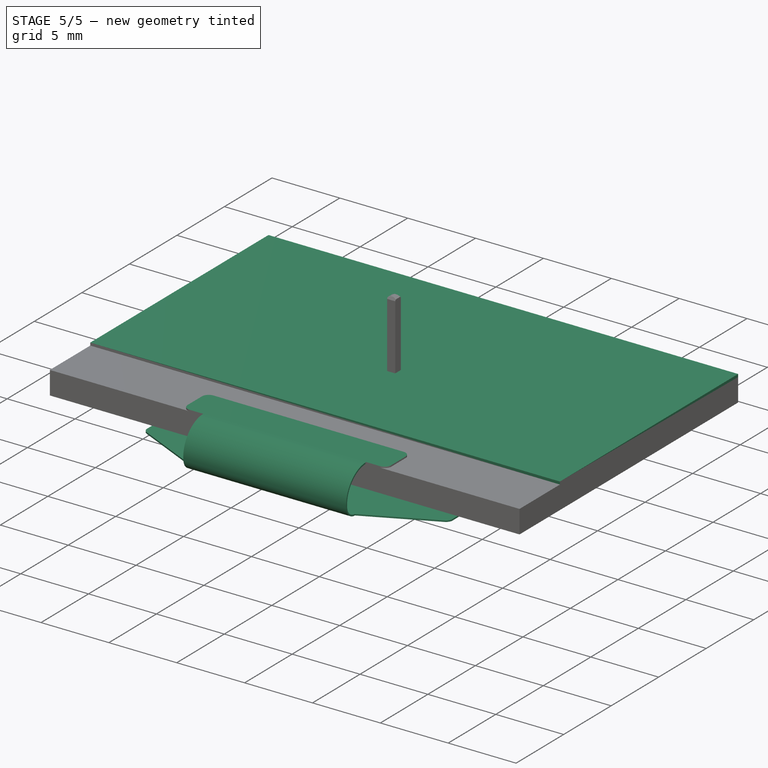
[diagram: stage 5 of 5 — iso view after this stage's code; geometry added in this stage tinted green]
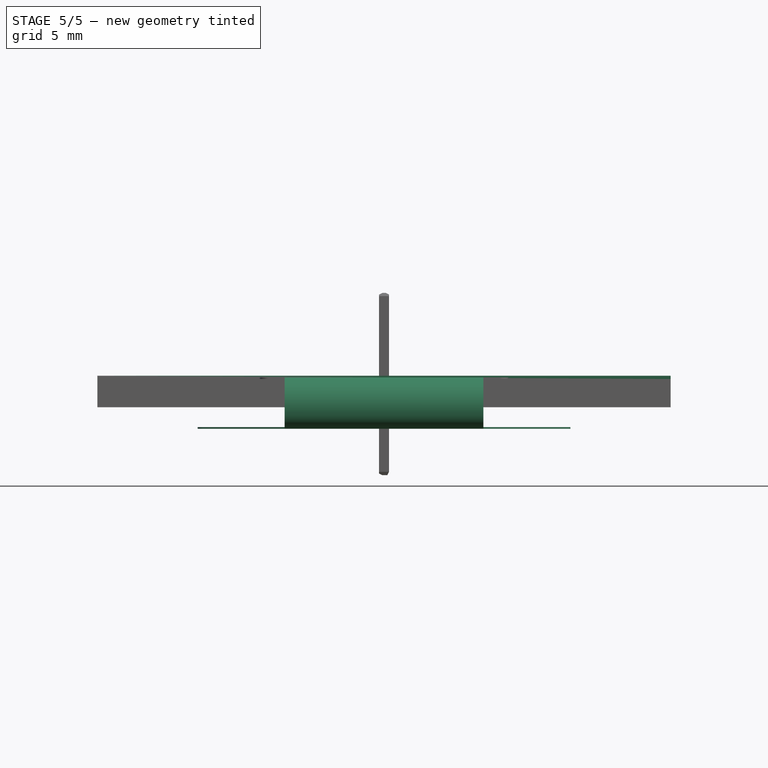
[diagram: stage 5 of 5 — front view after this stage's code; geometry added in this stage tinted green]
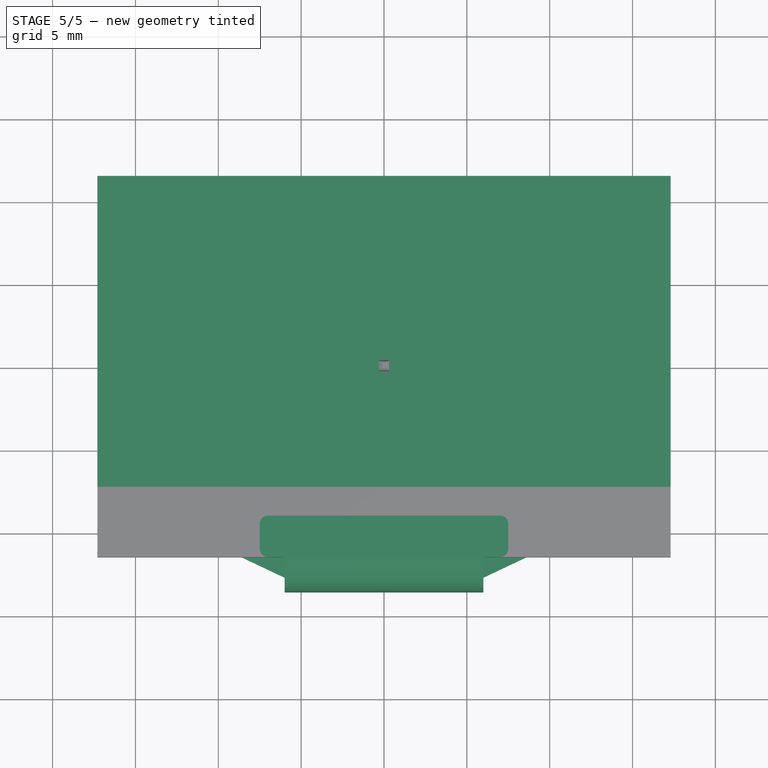
[diagram: stage 5 of 5 — top view after this stage's code; geometry added in this stage tinted green]
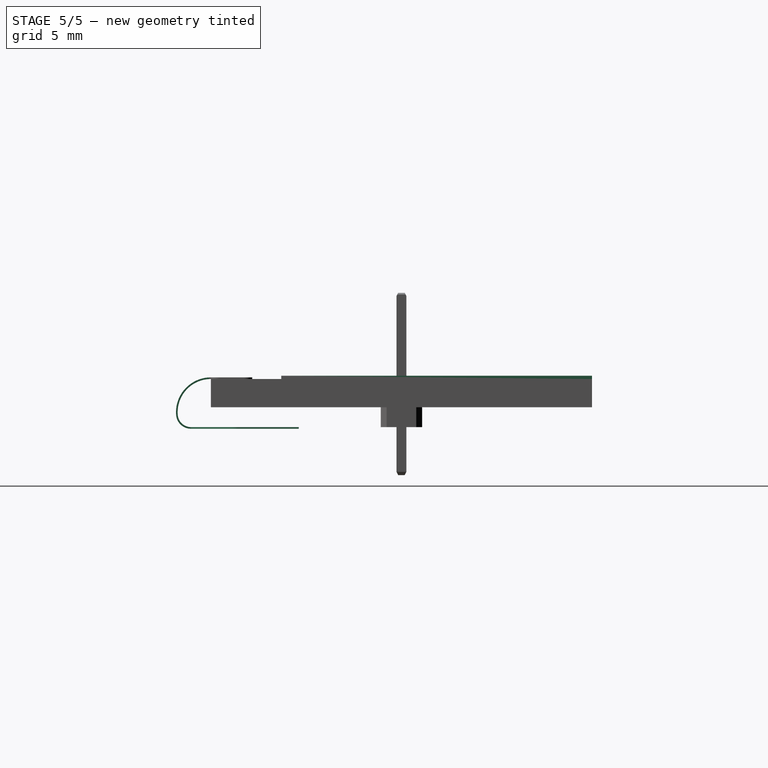
[diagram: stage 5 of 5 — right view after this stage's code; geometry added in this stage tinted green]
FEATURE [PartDesign::Pad] Pad024  label="Display area pad"
  BaseFeature = -> Pad023
  Direction = (0,0,1)
  Length = 0.2
  Length2 = 10
  Profile = -> Sketch002
  ReferenceAxis = -> Sketch002 [N_Axis]
  Suppressed = false
  Type = 0
FEATURE [PartDesign::Body] Body013  label="OLED"
  AllowCompound = false
  Group = -> [Sketch062,Sketch002,Pad023,Pad024]
  Origin = -> Origin072
  Tip = -> Pad024
FEATURE [Sketcher::SketchObject] Sketch003
  AttachmentSupport = -> [YZ_Plane002]
  FullyConstrained = true
  MapMode = 5
  Placement = pos=(0,0,0) rot=(0.57735,0.57735,0.57735;2.0944rad)
  expr: Constraints[4] = <<Display area sketch>>.Placement.Base.z
  sketch-geometry (6):
    g0: ArcOfCircle CenterX=-11.5 CenterY=0.896154 CenterZ=0 NormalX=0 NormalY=0 NormalZ=1 AngleXU=0 Radius=2.00385 StartAngle=1.5708 EndAngle=3.22155
    g1: ArcOfCircle CenterX=-11.5 CenterY=0.896154 CenterZ=0 NormalX=0 NormalY=0 NormalZ=1 AngleXU=0 Radius=2.10385 StartAngle=1.5708 EndAngle=3.22155
    g2: LineSegment StartX=-11.5 StartY=2.9 StartZ=0 EndX=-11.5 EndY=3 EndZ=0
    g3: ArcOfCircle CenterX=-12.7 CenterY=0.8 CenterZ=0 NormalX=0 NormalY=0 NormalZ=1 AngleXU=0 Radius=0.8 StartAngle=3.22155 EndAngle=4.71239
    g4: ArcOfCircle CenterX=-12.7 CenterY=0.8 CenterZ=0 NormalX=0 NormalY=0 NormalZ=1 AngleXU=0 Radius=0.9 StartAngle=3.22155 EndAngle=4.71239
    g5: LineSegment StartX=-12.7 StartY=0 StartZ=0 EndX=-12.7 EndY=-0.1 EndZ=0
  constraints (18):
    c: Coincident(g1,g0)
    c: Coincident(g2,g0)
    c: Coincident(g2,g1)
    c: DistanceY(g2,g2) = 0.1
    c: DistanceY(g-1,g0) = 2.9
    c: Perpendicular(g0,g2)
    c: DistanceX(g1,g-1) = 11.5
    c: Coincident(g4,g3)
    c: Tangent(g3,g0) = -1.5708
    c: Coincident(g5,g3)
    c: Coincident(g5,g4)
    c: Vertical(g5)
    c: DistanceX(g3,g-1) = 12.7
    c: Vertical(g2)
    c: Perpendicular(g3,g5)
    c: PointOnObject(g3,g-1)
    c: Tangent(g4,g1) = -1.5708
    c: Radius(g3) = 0.8
FEATURE [PartDesign::Pad] Pad025
  Direction = (1,0,0)
  Length = 12
  Length2 = 10
  Midplane = true
  Placement = pos=(0,0,0) rot=(1,1,1;2.0944rad)
  Profile = -> Sketch003
  ReferenceAxis = -> Sketch003 [N_Axis]
  Suppressed = false
  Type = 0
FEATURE [Sketcher::SketchObject] Sketch004
  AttachmentOffset = pos=(0,0,2.9) rot=(0,0,1;0rad)
  AttachmentSupport = -> [XY_Plane002]
  ExternalGeometry = -> [Sketch003]
  FullyConstrained = false
  MapMode = 5
  Placement = pos=(0,0,2.9) rot=(0,0,1;0rad)
  expr: .AttachmentOffset.Base.z = <<Display area sketch>>.Placement.Base.z
  sketch-geometry (10):
    g0: LineSegment StartX=-7.5 StartY=-9.5 StartZ=0 EndX=-7.5 EndY=-11 EndZ=0
    g1: LineSegment StartX=-7 StartY=-11.5 StartZ=0 EndX=7 EndY=-11.5 EndZ=0
    g2: LineSegment StartX=7.5 StartY=-11 StartZ=0 EndX=7.5 EndY=-9.5 EndZ=0
    g3: LineSegment StartX=7 StartY=-9 StartZ=0 EndX=-7 EndY=-9 EndZ=0
    g4: ArcOfCircle CenterX=-7 CenterY=-9.5 CenterZ=0 NormalX=0 NormalY=0 NormalZ=1 AngleXU=0 Radius=0.5 StartAngle=1.5708 EndAngle=3.14159
    g5: ArcOfCircle CenterX=-7 CenterY=-11 CenterZ=0 NormalX=0 NormalY=0 NormalZ=1 AngleXU=0 Radius=0.5 StartAngle=3.14159 EndAngle=4.71239
    g6: ArcOfCircle CenterX=7 CenterY=-11 CenterZ=0 NormalX=0 NormalY=0 NormalZ=1 AngleXU=0 Radius=0.5 StartAngle=4.71239 EndAngle=6.28319
    g7: ArcOfCircle CenterX=7 CenterY=-9.5 CenterZ=0 NormalX=0 NormalY=0 NormalZ=1 AngleXU=0 Radius=0.5 StartAngle=5e-16 EndAngle=1.5708
    g8: GeomPoint X=-7.5 Y=-9 Z=0
    g9: GeomPoint X=7.5 Y=-11.5 Z=0
  constraints (22):
    c: Tangent(g0,g4) = -1.5708
    c: Tangent(g0,g5) = -1.5708
    c: Tangent(g1,g5) = -1.5708
    c: Tangent(g1,g6) = -1.5708
    c: Tangent(g2,g6) = -1.5708
    c: Tangent(g2,g7) = -1.5708
    c: Tangent(g3,g7) = -1.5708
    c: Tangent(g3,g4) = -1.5708
    c: Vertical(g0)
    c: Vertical(g2)
    c: Horizontal(g1)
    c: Horizontal(g3)
    c: Equal(g4,g5)
    c: Equal(g5,g6)
    c: PointOnObject(g8,g0)
    c: PointOnObject(g8,g3)
    c: PointOnObject(g9,g1)
    c: PointOnObject(g9,g2)
    c: Radius(g5) = 0.5
    c: DistanceY(g1,g3) = 2.5
    c: DistanceX(g0,g2) = 15
    c: Symmetric(g7,g4,g-2)
FEATURE [PartDesign::Pad] Pad026
  BaseFeature = -> Pad025
  Direction = (0,0,1)
  Length = 0.1
  Length2 = 10
  Placement = pos=(0,0,0) rot=(1,1,1;2.0944rad)
  Profile = -> Sketch004
  ReferenceAxis = -> Sketch004 [N_Axis]
  Suppressed = false
  Type = 0
FEATURE [Sketcher::SketchObject] Sketch063
  AttachmentSupport = -> [XY_Plane002]
  ExternalGeometry = -> [Sketch003]
  FullyConstrained = false
  MapMode = 5
  expr: Constraints[18] = <<Pad025>>.Length
  sketch-geometry (8):
    g0: LineSegment StartX=-6 StartY=-12.7 StartZ=0 EndX=6 EndY=-12.7 EndZ=0
    g1: LineSegment StartX=6 StartY=-12.7 StartZ=0 EndX=10.9638 EndY=-10.352 EndZ=0
    g2: ArcOfCircle CenterX=10.75 CenterY=-9.9 CenterZ=0 NormalX=0 NormalY=0 NormalZ=1 AngleXU=0 Radius=0.5 StartAngle=5.15423 EndAngle=6.28319
    g3: LineSegment StartX=11.25 StartY=-9.9 StartZ=0 EndX=11.25 EndY=-6.2 EndZ=0
    g4: LineSegment StartX=11.25 StartY=-6.2 StartZ=0 EndX=-11.25 EndY=-6.2 EndZ=0
    g5: LineSegment StartX=-11.25 StartY=-6.2 StartZ=0 EndX=-11.25 EndY=-9.9 EndZ=0
    g6: ArcOfCircle CenterX=-10.75 CenterY=-9.9 CenterZ=0 NormalX=0 NormalY=0 NormalZ=1 AngleXU=0 Radius=0.5 StartAngle=3.14159 EndAngle=4.27055
    g7: LineSegment StartX=-10.9638 StartY=-10.352 StartZ=0 EndX=-6 EndY=-12.7 EndZ=0
  constraints (19):
    c: Coincident(g0,g1)
    c: Tangent(g1,g2) = -1.5708
    c: Vertical(g3)
    c: Coincident(g3,g4)
    c: Coincident(g4,g5)
    c: Tangent(g5,g6) = -1.5708
    c: Coincident(g7,g0)
    c: Vertical(g5)
    c: Tangent(g6,g7) = -1.5708
    c: Tangent(g2,g3) = -1.5708
    c: Symmetric(g4,g3,g-2)
    c: Symmetric(g0,g0,g-2)
    c: DistanceY(g0,g3) = 6.5
    c: DistanceX(g4,g4) = 22.5
    c: Radius(g2) = 0.5
    c: Equal(g2,g6)
    c: DistanceY(g3,g3) = 3.7
    c: Equal(g3,g5)
    c: DistanceX(g0,g0) = 12
FEATURE [PartDesign::Pad] Pad027
  BaseFeature = -> Pad026
  Direction = (0,0,1)
  Length = 0.1
  Length2 = 10
  Placement = pos=(0,0,0) rot=(1,1,1;2.0944rad)
  Profile = -> Sketch063
  ReferenceAxis = -> Sketch063 [N_Axis]
  Reversed = true
  Suppressed = false
  Type = 0
  expr: Length = <<Pad026>>.Length
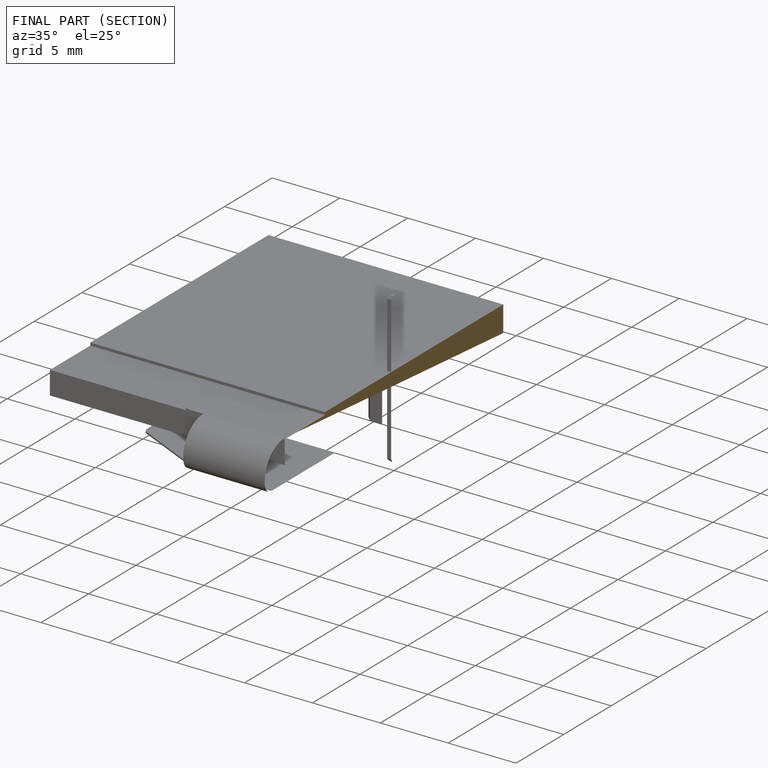
[diagram: finished part — half-section view (interior)]
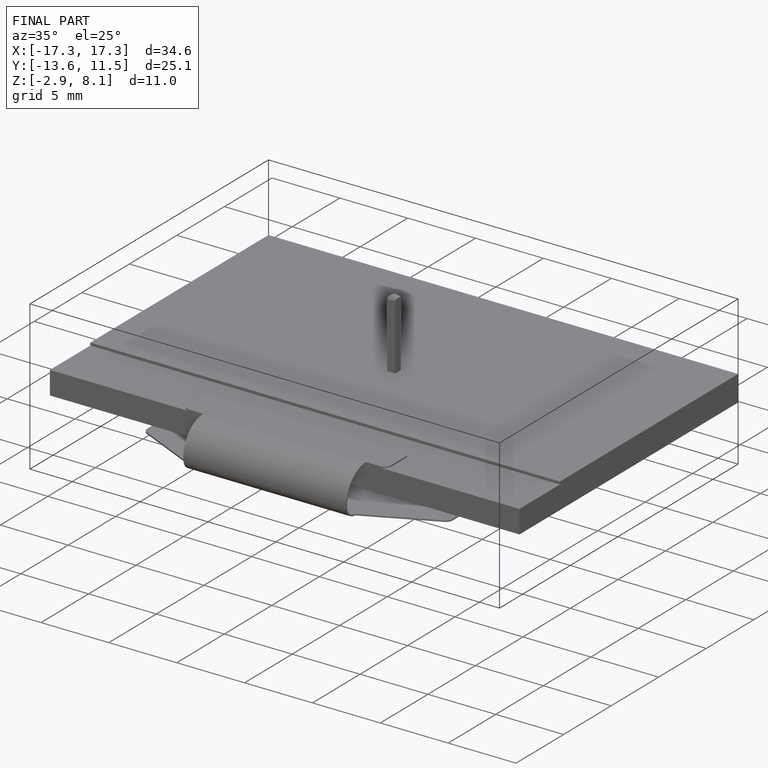
[diagram: finished part — iso view with bounding-box wireframe]
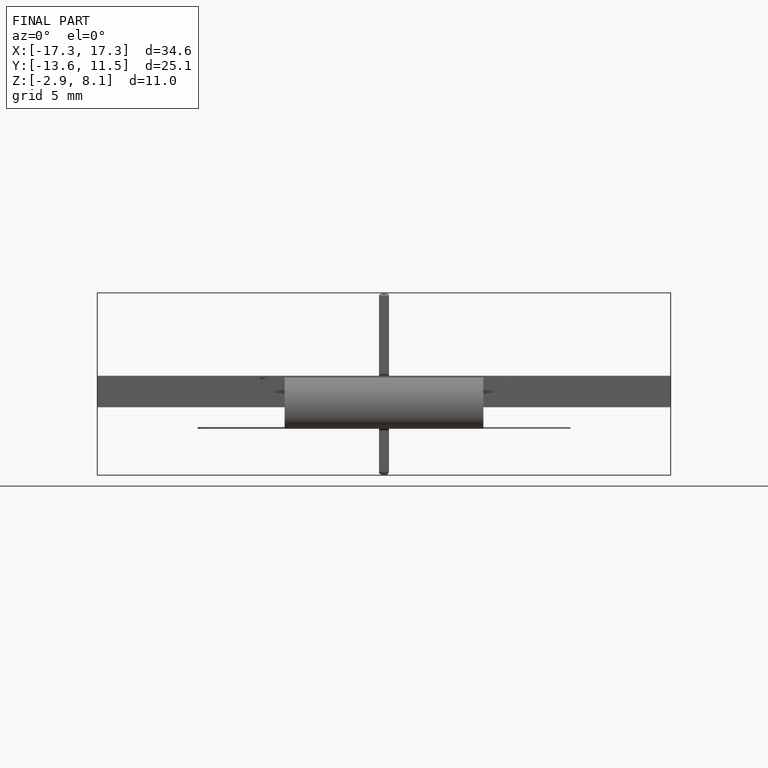
[diagram: finished part — front view with bounding-box wireframe]
